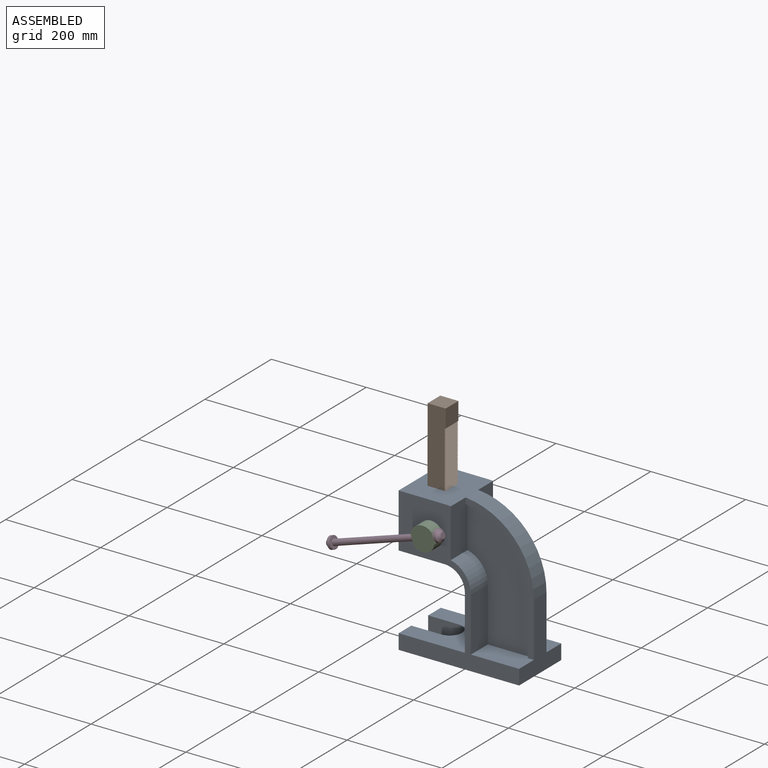
[diagram: assembled view]
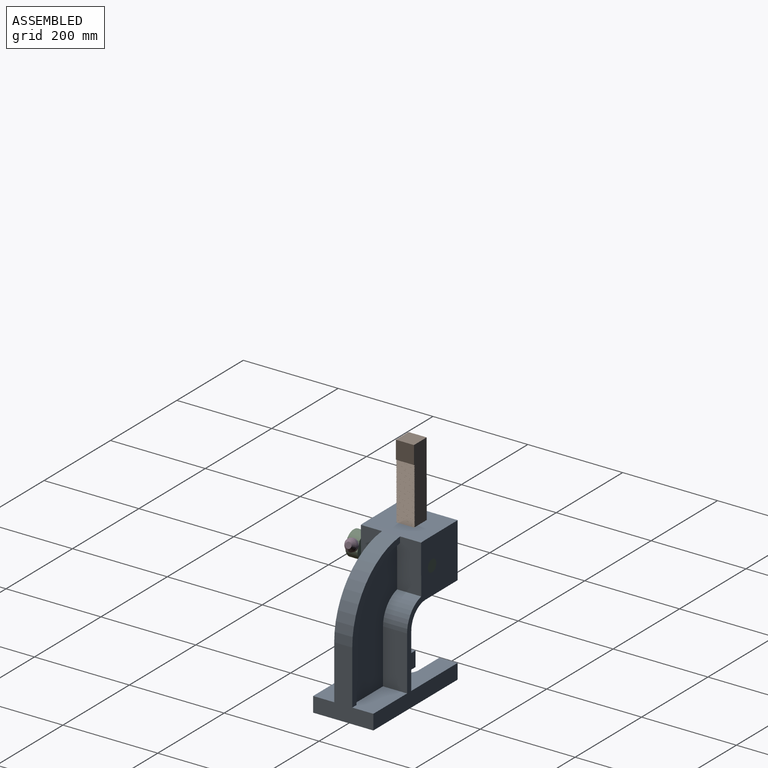
[diagram: assembled view, second angle]
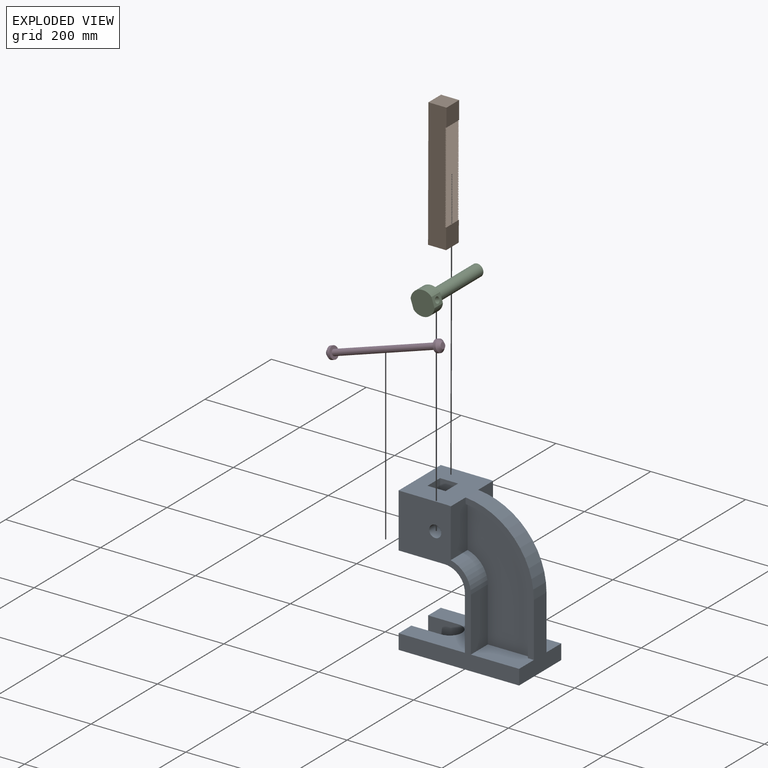
[diagram: exploded view]
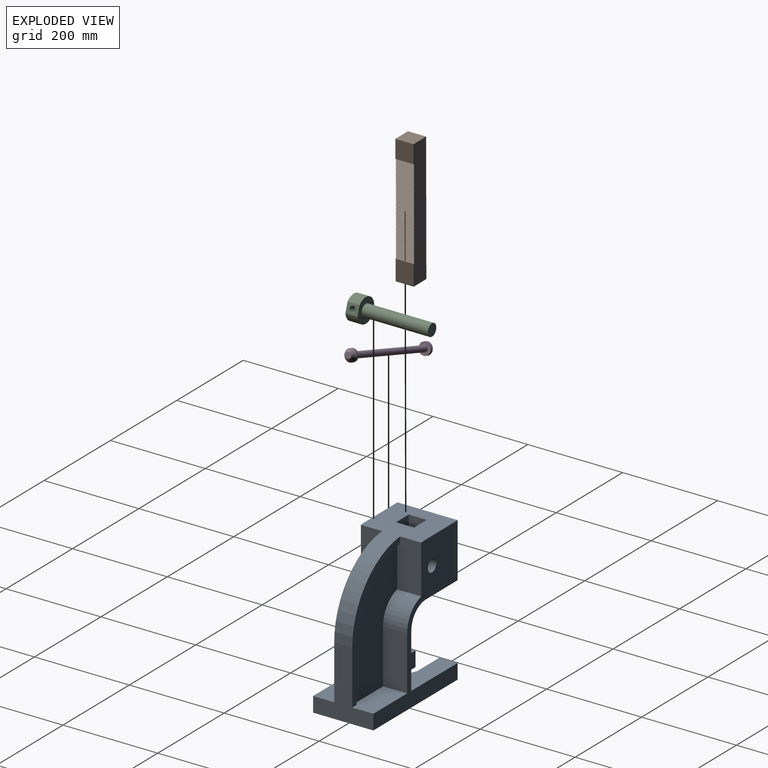
[diagram: exploded view, second angle]
ASSEMBLY  parts=4 mates=3
PART A: 40 faces, bbox 254x127x303.8 mm
  f0: plane 48.71x38.1mm, normal (-1,0,0), area 1855.9mm2, adj f33,f35,f38,f39
  f1: plane 101.6x50.8mm, normal (0,0,1), area 5080.6mm2, adj f14,f15,f20,f26,f28,f31
  f2: plane 89.87x50.8mm, normal (1,0,0), area 4565.3mm2, adj f7,f14,f21,f27,f31
  f3: plane 114.3x6.35mm, normal (-1,0,0), area 725.8mm2, adj f6,f8,f29,f30
  f4: plane 114.3x50.8mm, normal (1,0,0), area 5806.4mm2, adj f5,f8,f16,f30
  f5: cylinder r=55.88mm len=54.28mm, axis (0,-1,0), area 3777.8mm2, adj f4,f16,f22,f30
  f6: cylinder r=144.78mm len=144.15mm, axis (0,1,0), area 1358.1mm2, adj f3,f22,f29,f30
  f7: plane 44.45x12.75mm, normal (1,0,0), area 566.8mm2, adj f2,f14,f24,f28
  f8: plane 101.6x50.8mm, normal (0,0,1), area 5080.6mm2, adj f3,f4,f15,f16,f29,f30
  f9: plane 38.1x31.75mm, normal (-1,0,0), area 1209.7mm2, adj f10,f16,f17,f18
  f10: plane 63.5x31.75mm, normal (0,-1,0), area 2016.1mm2, adj f9,f11,f17,f18
  f11: cylinder r=25.4mm len=50.8mm, axis (0,0,-1), area 2533.5mm2, adj f10,f12,f17,f18
  f12: plane 63.5x31.75mm, normal (0,1,0), area 2016.1mm2, adj f11,f13,f17,f18
  f13: plane 38.1x31.75mm, normal (-1,0,0), area 1209.7mm2, adj f12,f14,f17,f18
  f14: plane 303.8x254mm, normal (0,-1,0), area 22397.4mm2, adj f1,f2,f7,f13,f15,f17,f18,f19
  f15: plane 146.05x127mm, normal (1,0,0), area 8387.1mm2, adj f1,f8,f14,f16,f18,f24,f28,f29
  f16: plane 303.8x254mm, normal (0,1,0), area 22397.4mm2, adj f4,f5,f8,f9,f15,f17,f18,f19
  f17: plane 139.7x127mm, normal (0,0,1), area 13502.7mm2, adj f9,f10,f11,f12,f13,f14,f16,f19
  f18: plane 254x127mm, normal (0,0,-1), area 28018.8mm2, adj f9,f10,f11,f12,f13,f14,f15,f16
  f19: plane 127x114.3mm, normal (-1,0,0), area 14516.1mm2, adj f14,f16,f17,f25
  f20: plane 114.3x50.8mm, normal (1,0,0), area 5806.4mm2, adj f1,f14,f21,f31
  f21: cylinder r=55.88mm len=54.28mm, axis (0,-1,0), area 3777.8mm2, adj f2,f14,f20,f31
  f22: plane 89.87x50.8mm, normal (1,0,0), area 4565.3mm2, adj f5,f6,f16,f23,f30
  f23: plane 44.45x12.75mm, normal (1,0,0), area 566.8mm2, adj f16,f22,f24,f29
  f24: cylinder r=157.48mm len=157.48mm, axis (0,-1,0), area 10518.8mm2, adj f7,f14,f15,f16,f23,f28,f29,f33
  f25: cylinder r=43.18mm len=127mm, axis (0,-1,0), area 8544.2mm2, adj f14,f16,f19,f34
  f26: plane 114.3x6.35mm, normal (-1,0,0), area 725.8mm2, adj f1,f27,f28,f31
  f27: cylinder r=144.78mm len=144.15mm, axis (0,1,0), area 1358.1mm2, adj f2,f26,f28,f31
  f28: plane 271.2x143.95mm, normal (0,-1,0), area 4294.4mm2, adj f1,f7,f15,f24,f26,f27
  f29: plane 271.2x143.95mm, normal (0,1,0), area 4294.4mm2, adj f3,f6,f8,f15,f23,f24
  f30: plane 258.45x131.5mm, normal (0,1,0), area 22975.4mm2, adj f3,f4,f5,f6,f8,f22
  f31: plane 258.45x131.5mm, normal (0,-1,0), area 22975.4mm2, adj f1,f2,f20,f21,f26,f27
  f32: plane 127x114.3mm, normal (-1,0,0), area 14516.4mm2, adj f14,f16,f33,f34
  f33: plane 127x97.39mm, normal (0,0,1), area 10917mm2, adj f0,f14,f16,f24,f32,f35,f36,f38
  f34: plane 127x97.07mm, normal (0,0,-1), area 10876.3mm2, adj f14,f16,f25,f32,f35,f36,f37,f38
  f35: plane 114.41x38.42mm, normal (0,1,0), area 4318.3mm2, adj f0,f33,f34,f36,f37,f39
  f36: plane 114.3x38.1mm, normal (1,0,0), area 4354.9mm2, adj f33,f34,f35,f38
  f37: plane 48.78x38.1mm, normal (-1,0,0), area 1858.6mm2, adj f34,f35,f38,f39
  f38: plane 114.41x38.42mm, normal (0,-1,0), area 4318.3mm2, adj f0,f33,f34,f36,f37,f39
  f39: cylinder r=12.71mm len=127mm, axis (0,-1,0), area 9444.6mm2, adj f0,f14,f16,f35,f37,f38
PART B: 127 faces, bbox 38.9x38.1x271.9 mm
  f0: plane 38.1x38.1mm, normal (1,0,0), area 1451.6mm2, adj f1,f2,f5,f125
  f1: plane 271.89x38.86mm, normal (0,-1,0), area 10093.3mm2, adj f0,f3,f4,f5,f6,f7,f8,f9
  f2: plane 271.89x38.86mm, normal (0,1,0), area 10093.3mm2, adj f0,f3,f4,f5,f6,f7,f8,f9
  f3: plane 43.18x38.1mm, normal (1,0,0), area 1645.2mm2, adj f1,f2,f6,f11
  f4: plane 271.78x38.1mm, normal (-1,0,0), area 10354.8mm2, adj f1,f2,f5,f6
  f5: plane 38.1x38.1mm, normal (0,0,1), area 1451.6mm2, adj f0,f1,f2,f4
  f6: plane 38.1x38.1mm, normal (0,0,-1), area 1451.6mm2, adj f1,f2,f3,f4
  f7: plane 38.1x2.75mm, normal (0.5,0,-0.87), area 121mm2, adj f1,f2,f8,f68
  f8: plane 38.1x2.75mm, normal (0.5,0,0.86), area 121mm2, adj f1,f2,f7,f69
  f9: plane 38.1x2.75mm, normal (0.5,0,-0.87), area 121mm2, adj f1,f2,f10,f126
  f10: plane 38.1x2.75mm, normal (0.5,0,0.86), area 121mm2, adj f1,f2,f9,f67
  f11: plane 38.1x2.75mm, normal (0.5,0,0.86), area 121mm2, adj f1,f2,f3,f12
  f12: plane 38.1x2.75mm, normal (0.5,0,-0.87), area 121mm2, adj f1,f2,f11,f123
  f13: plane 38.1x2.75mm, normal (0.5,0,0.86), area 121mm2, adj f1,f2,f14,f124
  f14: plane 38.1x2.75mm, normal (0.5,0,-0.87), area 121mm2, adj f1,f2,f13,f121
  f15: plane 38.1x2.75mm, normal (0.5,0,0.86), area 121mm2, adj f1,f2,f16,f122
  f16: plane 38.1x2.75mm, normal (0.5,0,-0.87), area 121mm2, adj f1,f2,f15,f119
  f17: plane 38.1x2.75mm, normal (0.5,0,0.86), area 121mm2, adj f1,f2,f18,f120
  f18: plane 38.1x2.75mm, normal (0.5,0,-0.87), area 121mm2, adj f1,f2,f17,f117
  f19: plane 38.1x2.75mm, normal (0.5,0,0.86), area 121mm2, adj f1,f2,f20,f118
  f20: plane 38.1x2.75mm, normal (0.5,0,-0.87), area 121mm2, adj f1,f2,f19,f115
  f21: plane 38.1x2.75mm, normal (0.5,0,0.86), area 121mm2, adj f1,f2,f22,f116
  f22: plane 38.1x2.75mm, normal (0.5,0,-0.87), area 121mm2, adj f1,f2,f21,f113
  f23: plane 38.1x2.75mm, normal (0.5,0,0.86), area 121mm2, adj f1,f2,f24,f114
  f24: plane 38.1x2.75mm, normal (0.5,0,-0.87), area 121mm2, adj f1,f2,f23,f111
  f25: plane 38.1x2.75mm, normal (0.5,0,0.86), area 121mm2, adj f1,f2,f26,f112
  f26: plane 38.1x2.75mm, normal (0.5,0,-0.87), area 121mm2, adj f1,f2,f25,f109
  f27: plane 38.1x2.75mm, normal (0.5,0,0.86), area 121mm2, adj f1,f2,f28,f110
  f28: plane 38.1x2.75mm, normal (0.5,0,-0.87), area 121mm2, adj f1,f2,f27,f107
  f29: plane 38.1x2.75mm, normal (0.5,0,0.86), area 121mm2, adj f1,f2,f30,f108
  f30: plane 38.1x2.75mm, normal (0.5,0,-0.87), area 121mm2, adj f1,f2,f29,f105
  f31: plane 38.1x2.75mm, normal (0.5,0,0.86), area 121mm2, adj f1,f2,f32,f106
  f32: plane 38.1x2.75mm, normal (0.5,0,-0.87), area 121mm2, adj f1,f2,f31,f103
  f33: plane 38.1x2.75mm, normal (0.5,0,0.86), area 121mm2, adj f1,f2,f34,f104
  f34: plane 38.1x2.75mm, normal (0.5,0,-0.87), area 121mm2, adj f1,f2,f33,f101
  f35: plane 38.1x2.75mm, normal (0.5,0,0.86), area 121mm2, adj f1,f2,f36,f102
  f36: plane 38.1x2.75mm, normal (0.5,0,-0.87), area 121mm2, adj f1,f2,f35,f99
  f37: plane 38.1x2.75mm, normal (0.5,0,-0.87), area 121mm2, adj f1,f2,f38,f98
  f38: plane 38.1x2.75mm, normal (0.5,0,0.86), area 121mm2, adj f1,f2,f37,f100
  f39: plane 38.1x2.75mm, normal (0.5,0,-0.87), area 121mm2, adj f1,f2,f40,f96
  f40: plane 38.1x2.75mm, normal (0.5,0,0.86), area 121mm2, adj f1,f2,f39,f97
  f41: plane 38.1x2.75mm, normal (0.5,0,-0.87), area 121mm2, adj f1,f2,f42,f94
  f42: plane 38.1x2.75mm, normal (0.5,0,0.86), area 121mm2, adj f1,f2,f41,f95
  f43: plane 38.1x2.75mm, normal (0.5,0,-0.87), area 121mm2, adj f1,f2,f44,f92
  f44: plane 38.1x2.75mm, normal (0.5,0,0.86), area 121mm2, adj f1,f2,f43,f93
  f45: plane 38.1x2.75mm, normal (0.5,0,-0.87), area 121mm2, adj f1,f2,f46,f90
  f46: plane 38.1x2.75mm, normal (0.5,0,0.86), area 121mm2, adj f1,f2,f45,f91
  f47: plane 38.1x2.75mm, normal (0.5,0,-0.87), area 121mm2, adj f1,f2,f48,f88
  f48: plane 38.1x2.75mm, normal (0.5,0,0.86), area 121mm2, adj f1,f2,f47,f89
  f49: plane 38.1x2.75mm, normal (0.5,0,-0.87), area 121mm2, adj f1,f2,f50,f86
  f50: plane 38.1x2.75mm, normal (0.5,0,0.86), area 121mm2, adj f1,f2,f49,f87
  f51: plane 38.1x2.75mm, normal (0.5,0,-0.87), area 121mm2, adj f1,f2,f52,f84
  f52: plane 38.1x2.75mm, normal (0.5,0,0.86), area 121mm2, adj f1,f2,f51,f85
  f53: plane 38.1x2.75mm, normal (0.5,0,-0.87), area 121mm2, adj f1,f2,f54,f82
  f54: plane 38.1x2.75mm, normal (0.5,0,0.86), area 121mm2, adj f1,f2,f53,f83
  f55: plane 38.1x2.75mm, normal (0.5,0,-0.87), area 121mm2, adj f1,f2,f56,f80
  f56: plane 38.1x2.75mm, normal (0.5,0,0.86), area 121mm2, adj f1,f2,f55,f81
  f57: plane 38.1x2.75mm, normal (0.5,0,-0.87), area 121mm2, adj f1,f2,f58,f78
  f58: plane 38.1x2.75mm, normal (0.5,0,0.86), area 121mm2, adj f1,f2,f57,f79
  f59: plane 38.1x2.75mm, normal (0.5,0,-0.87), area 121mm2, adj f1,f2,f60,f76
  f60: plane 38.1x2.75mm, normal (0.5,0,0.86), area 121mm2, adj f1,f2,f59,f77
  f61: plane 38.1x2.75mm, normal (0.5,0,-0.87), area 121mm2, adj f1,f2,f62,f74
  f62: plane 38.1x2.75mm, normal (0.5,0,0.86), area 121mm2, adj f1,f2,f61,f75
  f63: plane 38.1x2.75mm, normal (0.5,0,-0.87), area 121mm2, adj f1,f2,f64,f72
  f64: plane 38.1x2.75mm, normal (0.5,0,0.86), area 121mm2, adj f1,f2,f63,f73
  f65: plane 38.1x2.75mm, normal (0.5,0,-0.87), area 121mm2, adj f1,f2,f66,f70
  f66: plane 38.1x2.75mm, normal (0.5,0,0.86), area 121mm2, adj f1,f2,f65,f71
  f67: plane 38.1x2.75mm, normal (0.5,0,-0.87), area 121mm2, adj f1,f2,f10,f68
  f68: plane 38.1x2.75mm, normal (0.5,0,0.86), area 121mm2, adj f1,f2,f7,f67
  f69: plane 38.1x2.75mm, normal (0.5,0,-0.87), area 121mm2, adj f1,f2,f8,f70
  f70: plane 38.1x2.75mm, normal (0.5,0,0.86), area 121mm2, adj f1,f2,f65,f69
  f71: plane 38.1x2.75mm, normal (0.5,0,-0.87), area 121mm2, adj f1,f2,f66,f72
  f72: plane 38.1x2.75mm, normal (0.5,0,0.86), area 121mm2, adj f1,f2,f63,f71
  f73: plane 38.1x2.75mm, normal (0.5,0,-0.87), area 121mm2, adj f1,f2,f64,f74
  f74: plane 38.1x2.75mm, normal (0.5,0,0.86), area 121mm2, adj f1,f2,f61,f73
  f75: plane 38.1x2.75mm, normal (0.5,0,-0.87), area 121mm2, adj f1,f2,f62,f76
  f76: plane 38.1x2.75mm, normal (0.5,0,0.86), area 121mm2, adj f1,f2,f59,f75
  f77: plane 38.1x2.75mm, normal (0.5,0,-0.87), area 121mm2, adj f1,f2,f60,f78
  f78: plane 38.1x2.75mm, normal (0.5,0,0.86), area 121mm2, adj f1,f2,f57,f77
  f79: plane 38.1x2.75mm, normal (0.5,0,-0.87), area 121mm2, adj f1,f2,f58,f80
  f80: plane 38.1x2.75mm, normal (0.5,0,0.86), area 121mm2, adj f1,f2,f55,f79
  f81: plane 38.1x2.75mm, normal (0.5,0,-0.87), area 121mm2, adj f1,f2,f56,f82
  f82: plane 38.1x2.75mm, normal (0.5,0,0.86), area 121mm2, adj f1,f2,f53,f81
  f83: plane 38.1x2.75mm, normal (0.5,0,-0.87), area 121mm2, adj f1,f2,f54,f84
  f84: plane 38.1x2.75mm, normal (0.5,0,0.86), area 121mm2, adj f1,f2,f51,f83
  f85: plane 38.1x2.75mm, normal (0.5,0,-0.87), area 121mm2, adj f1,f2,f52,f86
  f86: plane 38.1x2.75mm, normal (0.5,0,0.86), area 121mm2, adj f1,f2,f49,f85
  f87: plane 38.1x2.75mm, normal (0.5,0,-0.87), area 121mm2, adj f1,f2,f50,f88
  f88: plane 38.1x2.75mm, normal (0.5,0,0.86), area 121mm2, adj f1,f2,f47,f87
  f89: plane 38.1x2.75mm, normal (0.5,0,-0.87), area 121mm2, adj f1,f2,f48,f90
  f90: plane 38.1x2.75mm, normal (0.5,0,0.86), area 121mm2, adj f1,f2,f45,f89
  f91: plane 38.1x2.75mm, normal (0.5,0,-0.87), area 121mm2, adj f1,f2,f46,f92
  f92: plane 38.1x2.75mm, normal (0.5,0,0.86), area 121mm2, adj f1,f2,f43,f91
  f93: plane 38.1x2.75mm, normal (0.5,0,-0.87), area 121mm2, adj f1,f2,f44,f94
  f94: plane 38.1x2.75mm, normal (0.5,0,0.86), area 121mm2, adj f1,f2,f41,f93
  f95: plane 38.1x2.75mm, normal (0.5,0,-0.87), area 121mm2, adj f1,f2,f42,f96
  f96: plane 38.1x2.75mm, normal (0.5,0,0.86), area 121mm2, adj f1,f2,f39,f95
  f97: plane 38.1x2.75mm, normal (0.5,0,-0.87), area 121mm2, adj f1,f2,f40,f98
  f98: plane 38.1x2.75mm, normal (0.5,0,0.86), area 121mm2, adj f1,f2,f37,f97
  f99: plane 38.1x2.75mm, normal (0.5,0,0.86), area 121mm2, adj f1,f2,f36,f100
  f100: plane 38.1x2.75mm, normal (0.5,0,-0.87), area 121mm2, adj f1,f2,f38,f99
  f101: plane 38.1x2.75mm, normal (0.5,0,0.86), area 121mm2, adj f1,f2,f34,f102
  f102: plane 38.1x2.75mm, normal (0.5,0,-0.87), area 121mm2, adj f1,f2,f35,f101
  f103: plane 38.1x2.75mm, normal (0.5,0,0.86), area 121mm2, adj f1,f2,f32,f104
  f104: plane 38.1x2.75mm, normal (0.5,0,-0.87), area 121mm2, adj f1,f2,f33,f103
  f105: plane 38.1x2.75mm, normal (0.5,0,0.86), area 121mm2, adj f1,f2,f30,f106
  f106: plane 38.1x2.75mm, normal (0.5,0,-0.87), area 121mm2, adj f1,f2,f31,f105
  f107: plane 38.1x2.75mm, normal (0.5,0,0.86), area 121mm2, adj f1,f2,f28,f108
  f108: plane 38.1x2.75mm, normal (0.5,0,-0.87), area 121mm2, adj f1,f2,f29,f107
  f109: plane 38.1x2.75mm, normal (0.5,0,0.86), area 121mm2, adj f1,f2,f26,f110
  f110: plane 38.1x2.75mm, normal (0.5,0,-0.87), area 121mm2, adj f1,f2,f27,f109
  f111: plane 38.1x2.75mm, normal (0.5,0,0.86), area 121mm2, adj f1,f2,f24,f112
  f112: plane 38.1x2.75mm, normal (0.5,0,-0.87), area 121mm2, adj f1,f2,f25,f111
  f113: plane 38.1x2.75mm, normal (0.5,0,0.86), area 121mm2, adj f1,f2,f22,f114
  f114: plane 38.1x2.75mm, normal (0.5,0,-0.87), area 121mm2, adj f1,f2,f23,f113
  f115: plane 38.1x2.75mm, normal (0.5,0,0.86), area 121mm2, adj f1,f2,f20,f116
  f116: plane 38.1x2.75mm, normal (0.5,0,-0.87), area 121mm2, adj f1,f2,f21,f115
  f117: plane 38.1x2.75mm, normal (0.5,0,0.86), area 121mm2, adj f1,f2,f18,f118
  f118: plane 38.1x2.75mm, normal (0.5,0,-0.87), area 121mm2, adj f1,f2,f19,f117
  f119: plane 38.1x2.75mm, normal (0.5,0,0.86), area 121mm2, adj f1,f2,f16,f120
  f120: plane 38.1x2.75mm, normal (0.5,0,-0.87), area 121mm2, adj f1,f2,f17,f119
  f121: plane 38.1x2.75mm, normal (0.5,0,0.86), area 121mm2, adj f1,f2,f14,f122
  f122: plane 38.1x2.75mm, normal (0.5,0,-0.87), area 121mm2, adj f1,f2,f15,f121
  f123: plane 38.1x2.75mm, normal (0.5,0,0.86), area 121mm2, adj f1,f2,f12,f124
  f124: plane 38.1x2.75mm, normal (0.5,0,-0.87), area 121mm2, adj f1,f2,f13,f123
  f125: plane 38.1x2.75mm, normal (0.5,0,-0.87), area 121mm2, adj f0,f1,f2,f126
  f126: plane 38.1x2.75mm, normal (0.5,0,0.86), area 121mm2, adj f1,f2,f9,f125
PART C: 9 faces, bbox 50.8x165.1x46.4 mm
  f0: cylinder r=12.71mm len=139.7mm, axis (0,1,0), area 11158.8mm2, adj f1,f7
  f1: plane 25.43x25.43mm, normal (0,1,0), area 507.7mm2, adj f0
  f2: plane 25.4x20.65mm, normal (0,0,1), area 397.7mm2, adj f3,f5,f6,f7,f8
  f3: cylinder r=25.4mm len=46.42mm, axis (0,1,0), area 1486.8mm2, adj f2,f4,f6,f7
  f4: plane 25.4x20.65mm, normal (0,0,-1), area 397.7mm2, adj f3,f5,f6,f7,f8
  f5: cylinder r=25.4mm len=46.42mm, axis (0,1,0), area 1486.8mm2, adj f2,f4,f6,f7
  f6: plane 50.8x46.42mm, normal (0,-1,0), area 1965.9mm2, adj f2,f3,f4,f5
  f7: plane 50.8x46.42mm, normal (0,1,0), area 1458.2mm2, adj f0,f2,f3,f4,f5
  f8: cylinder r=6.35mm len=46.42mm, axis (0,0,1), area 1851.9mm2, adj f2,f4
PART D: 9 faces, bbox 26.1x25.4x254 mm
  f0: cylinder r=12.7mm len=25.42mm, axis (0,0,-1), area 506.7mm2, adj f1,f7
  f1: plane 25.4x25.4mm, normal (0,0,1), area 380mm2, adj f0,f3
  f2: plane 12.7x12.7mm, normal (0,0,-1), area 126.7mm2, adj f7
  f3: cylinder r=6.35mm len=228.63mm, axis (0,0,-1), area 9120.7mm2, adj f1,f6
  f4: cylinder r=12.7mm len=25.42mm, axis (0,0,-1), area 506.7mm2, adj f6,f8
  f5: plane 12.7x12.7mm, normal (0,0,1), area 126.7mm2, adj f8
  f6: plane 25.4x25.4mm, normal (0,0,-1), area 380mm2, adj f3,f4
  f7: cone r=12.7mm half-angle=45deg, axis (0,0,1), area 537.4mm2, adj f0,f2
  f8: cone r=6.35mm half-angle=45deg, axis (0,0,-1), area 537.4mm2, adj f4,f5
PLACE A at identity fixed
PLACE B t=(-0.32,0,-114.3)mm
PLACE C rot(axis=(0,1,0),72deg) t=(-268.87,127,122.87)mm
PLACE D rot(axis=(0.81,0,-0.59),180deg) t=(297.33,-130.62,276.05)mm
MATE slider B.f5 <-> A.f33  axis (0,0,1) through (-77.86,0,461.14)mm
MATE fastened D.f7 <-> C.f8  axis (0.95,0,0.31) through (-27.81,-88.9,253.64)mm
MATE revolute C.f3 <-> A.f39  axis (0,1,0) through (-49.88,63.5,246.47)mm
